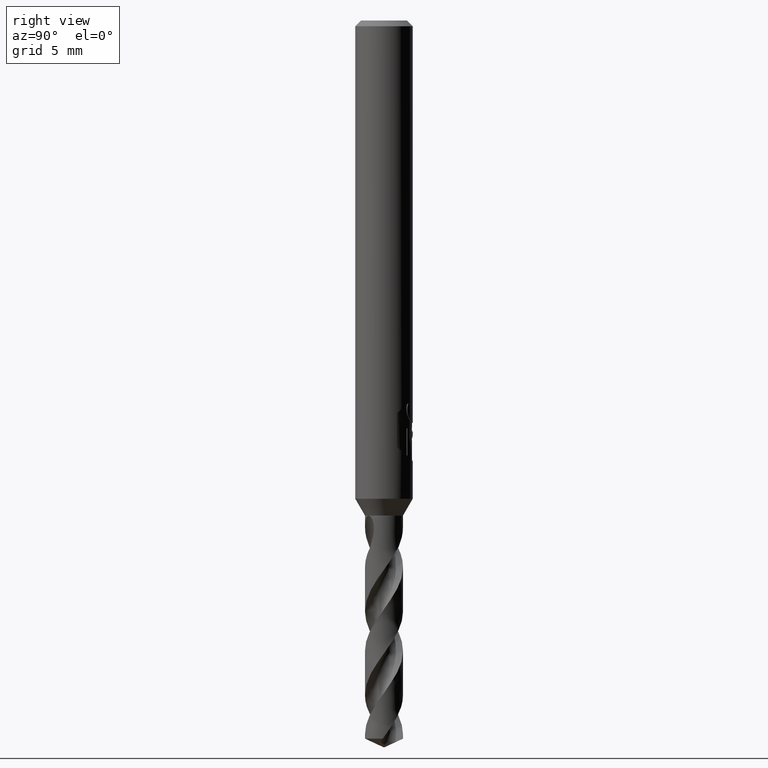
[diagram: clean part render]
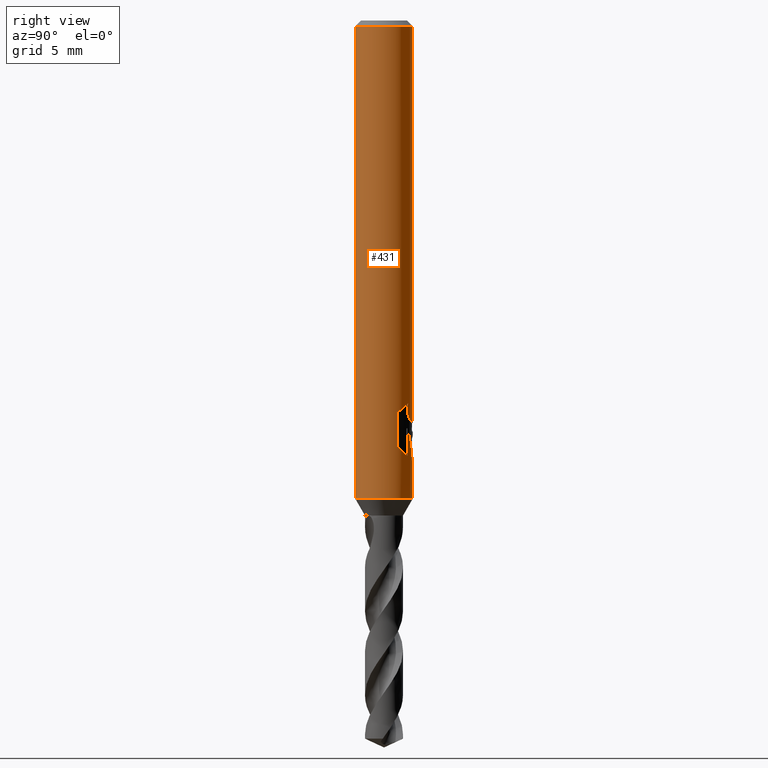
[diagram: same view with one face highlighted and labeled with its STEP entity id]
A machine part, right view. The second image highlights one B-rep face of the part: STEP entity #431.
In plain terms, the highlighted cylindrical surface (edge-blend (fillet) strip) has radius 1.5 mm, axis along (-0, -0, 1).
Its self-contained STEP definition (entity closure, byte-faithful):
#335=EDGE_CURVE('',#723,#379,#869,.T.);
#345=EDGE_CURVE('',#475,#633,#880,.T.);
#351=EDGE_CURVE('',#555,#769,#886,.T.);
#379=VERTEX_POINT('',#916);
#383=EDGE_CURVE('',#769,#429,#921,.T.);
#397=VERTEX_POINT('',#937);
#399=EDGE_CURVE('',#449,#723,#939,.T.);
#409=EDGE_CURVE('',#633,#567,#951,.T.);
#429=VERTEX_POINT('',#972);
#431=ADVANCED_FACE('',(#974),#975,.T.);
#449=VERTEX_POINT('',#996);
#475=VERTEX_POINT('',#1025);
#549=EDGE_CURVE('',#429,#397,#1106,.T.);
#555=VERTEX_POINT('',#1112);
#559=EDGE_CURVE('',#449,#475,#1116,.T.);
#567=VERTEX_POINT('',#1124);
#573=EDGE_CURVE('',#625,#739,#1131,.T.);
#601=EDGE_CURVE('',#625,#397,#1160,.T.);
#621=EDGE_CURVE('',#567,#555,#1185,.T.);
#625=VERTEX_POINT('',#1190);
#633=VERTEX_POINT('',#1199);
#647=EDGE_CURVE('',#379,#739,#1213,.T.);
#723=VERTEX_POINT('',#1295);
#739=VERTEX_POINT('',#1312);
#769=VERTEX_POINT('',#1344);
#869=CIRCLE('',#1611,1.5);
#880=ELLIPSE('',#1637,4.57199186005466,1.5);
#886=LINE('',#1645,#1646);
#916=CARTESIAN_POINT('',(1.83690953073357E-016,-1.5,-25.0));
#921=B_SPLINE_CURVE_WITH_KNOTS('',3,(#1700,#1701,#1702,#1703,#1704,#1705,#1706,#1707,#1708,#1709),.UNSPECIFIED.,.F.,.F.,(4,2,2,2,4),(5.80143132409454,6.14289950153579,6.48436767897705,6.79204857051347,7.0997294620499),.UNSPECIFIED.);
#937=CARTESIAN_POINT('',(1.07028167063725E-015,1.5,-21.0232688117743));
#939=LINE('',#2308,#2309);
#951=LINE('',#2328,#2329);
#972=CARTESIAN_POINT('',(0.799431726384364,1.26921586613551,-20.000000276873));
#974=FACE_OUTER_BOUND('',#2388,.T.);
#975=CYLINDRICAL_SURFACE('',#2389,1.5);
#996=CARTESIAN_POINT('',(-1.44945831354929E-017,1.5,-23.0310253601033));
#1025=CARTESIAN_POINT('',(0.29010312703583,1.47167937258223,-22.9998328990228));
#1106=B_SPLINE_CURVE_WITH_KNOTS('',3,(#3886,#3887,#3888,#3889,#3890,#3891,#3892,#3893,#3894,#3895,#3896,#3897,#3898,#3899,#3900,#3901,#3902,#3903,#3904,#3905,#3906,#3907,#3908,#3909,#3910,#3911,#3912),.UNSPECIFIED.,.F.,.F.,(4,2,3,2,2,2,2,2,2,2,2,2,4),(-0.555570148161677,-0.277785074080839,0.0,0.277785074080839,0.555570148161677,0.838954672448038,1.1223391967344,1.3938603912747,1.66538158581499,1.94034344792182,2.21530531002864,2.49026717213547,2.76522903424229),.UNSPECIFIED.);
#1112=CARTESIAN_POINT('',(1.33721006514658,0.679609624468842,-22.2901657003257));
#1116=B_SPLINE_CURVE_WITH_KNOTS('',3,(#3950,#3951,#3952,#3953,#3954,#3955,#3956,#3957,#3958,#3959,#3960,#3961,#3962,#3963,#3964,#3965),.UNSPECIFIED.,.F.,.F.,(4,2,2,2,2,2,2,4),(0.656882363151586,0.985323544727379,1.31376472630317,1.61579827194463,1.91783181758608,2.21986536322754,2.52189890886899,2.82957976825427),.UNSPECIFIED.);
#1124=CARTESIAN_POINT('',(0.873560781758956,1.21938163040645,-22.7587351791531));
#1131=CIRCLE('',#3989,1.5);
#1160=LINE('',#4111,#4112);
#1185=B_SPLINE_CURVE_WITH_KNOTS('',3,(#4255,#4256,#4257,#4258,#4259,#4260,#4261,#4262),.UNSPECIFIED.,.F.,.F.,(4,2,2,4),(3.44494145273238,3.75262234189648,4.09409052256848,4.43555870324049),.UNSPECIFIED.);
#1190=CARTESIAN_POINT('',(0.0,1.5,-0.300000000000001));
#1199=CARTESIAN_POINT('',(0.873560781758957,1.21938163040644,-21.3198931596091));
#1213=LINE('',#4549,#4550);
#1295=CARTESIAN_POINT('',(0.0,1.5,-25.0));
#1312=CARTESIAN_POINT('',(1.83690953073357E-016,-1.5,-0.300000000000001));
#1344=CARTESIAN_POINT('',(1.33721006514658,0.679609624468844,-20.5150484364821));
#1611=AXIS2_PLACEMENT_3D('',#5349,#5350,#5351);
#1637=AXIS2_PLACEMENT_3D('',#5362,#5363,#5364);
#1645=CARTESIAN_POINT('',(1.33721006514658,0.679609624468842,-21.4026070684039));
#1646=VECTOR('',#5368,1.0);
#1700=CARTESIAN_POINT('',(1.38233607683132,0.582363263513924,-20.588679412779));
#1701=CARTESIAN_POINT('',(1.34525639795916,0.670378049131382,-20.5244129230316));
#1702=CARTESIAN_POINT('',(1.29959340329505,0.755206644680287,-20.455769574626));
#1703=CARTESIAN_POINT('',(1.19231359589767,0.915242249292316,-20.3209795489815));
#1704=CARTESIAN_POINT('',(1.13065973177348,0.990366311544942,-20.2547639028079));
#1705=CARTESIAN_POINT('',(1.0018814103964,1.11969494701727,-20.1385233736042));
#1706=CARTESIAN_POINT('',(0.931827529215927,1.17928357954499,-20.0838174178235));
#1707=CARTESIAN_POINT('',(0.77571718400412,1.28735199393445,-19.9832315170083));
#1708=CARTESIAN_POINT('',(0.689646271470066,1.33582605359774,-19.9373678495874));
#1709=CARTESIAN_POINT('',(0.597730583977961,1.37576093452946,-19.8990923208842));
#2308=CARTESIAN_POINT('',(-1.83690953073357E-016,1.5,-12.65));
#2309=VECTOR('',#5423,1.0);
#2328=CARTESIAN_POINT('',(0.873560781758957,1.21938163040644,-22.0393141693811));
#2329=VECTOR('',#5440,1.0);
#2388=EDGE_LOOP('',(#5458,#5459,#5460,#5461,#5462,#5463,#5464,#5465,#5466,#5467,#5468,#5469));
#2389=AXIS2_PLACEMENT_3D('',#5470,#5471,#5472);
#3886=CARTESIAN_POINT('',(0.668140181180239,1.34297754943723,-19.816635075886));
#3887=CARTESIAN_POINT('',(0.72954561541178,1.31242794124006,-19.8788438588981));
#3888=CARTESIAN_POINT('',(0.783560352001634,1.27981669553828,-19.9575082882911));
#3889=CARTESIAN_POINT('',(0.856513351014311,1.23218614058296,-20.132478185051));
#3890=CARTESIAN_POINT('',(0.875400981188567,1.21806121444453,-20.2290469878932));
#3891=CARTESIAN_POINT('',(0.875400981188567,1.21806121444453,-20.3216420125868));
#3892=CARTESIAN_POINT('',(0.875400981188567,1.21806121444453,-20.4142370372804));
#3893=CARTESIAN_POINT('',(0.856513351014311,1.23218614058296,-20.5108058401225));
#3894=CARTESIAN_POINT('',(0.783560352001634,1.27981669553828,-20.6857757368825));
#3895=CARTESIAN_POINT('',(0.72954561541178,1.31242794124006,-20.7644401662755));
#3896=CARTESIAN_POINT('',(0.60549696744429,1.37414296109493,-20.8901117053001));
#3897=CARTESIAN_POINT('',(0.52594358793364,1.40783000818906,-20.945820443328));
#3898=CARTESIAN_POINT('',(0.348504567526036,1.46189827571051,-21.0210790623878));
#3899=CARTESIAN_POINT('',(0.250472190188546,1.48195366272155,-21.0405166027747));
#3900=CARTESIAN_POINT('',(0.0665134459332673,1.50125530483568,-21.0405166027747));
#3901=CARTESIAN_POINT('',(-0.0296567030390787,1.50231596180862,-21.0225191030741));
#3902=CARTESIAN_POINT('',(-0.206115087377689,1.48840496513252,-20.9496420023373));
#3903=CARTESIAN_POINT('',(-0.286451100530325,1.47383453037813,-20.8948020659474));
#3904=CARTESIAN_POINT('',(-0.413930554322423,1.44326440842702,-20.7683224497832));
#3905=CARTESIAN_POINT('',(-0.469556401354002,1.42515667708804,-20.6877724765815));
#3906=CARTESIAN_POINT('',(-0.543783863835251,1.3985185002205,-20.5103125850334));
#3907=CARTESIAN_POINT('',(-0.562348199187247,1.39059861314143,-20.4132959666224));
#3908=CARTESIAN_POINT('',(-0.562348199187247,1.39059861314143,-20.2299880585512));
#3909=CARTESIAN_POINT('',(-0.543783863835251,1.3985185002205,-20.1329714401401));
#3910=CARTESIAN_POINT('',(-0.469556401354002,1.42515667708804,-19.9555115485921));
#3911=CARTESIAN_POINT('',(-0.413930554322424,1.44326440842702,-19.8749615753903));
#3912=CARTESIAN_POINT('',(-0.349789520911262,1.45864570443294,-19.8113236082914));
#3950=CARTESIAN_POINT('',(-1.37998432118956,0.587914341780333,-22.3112692902851));
#3951=CARTESIAN_POINT('',(-1.3420187927796,0.677031105684867,-22.367742000234));
#3952=CARTESIAN_POINT('',(-1.29552710671502,0.762160552391982,-22.4289638354046));
#3953=CARTESIAN_POINT('',(-1.18739688452769,0.921611538394464,-22.5496702342709));
#3954=CARTESIAN_POINT('',(-1.12571460502269,0.995864518486346,-22.6092061584419));
#3955=CARTESIAN_POINT('',(-0.99683873257529,1.12423580420845,-22.7144597063823));
#3956=CARTESIAN_POINT('',(-0.926200605330785,1.18371601339253,-22.7644681671771));
#3957=CARTESIAN_POINT('',(-0.769406154596547,1.29114109676327,-22.8557531235434));
#3958=CARTESIAN_POINT('',(-0.683234987830561,1.33908204140926,-22.8970087462345));
#3959=CARTESIAN_POINT('',(-0.499897730684779,1.4177634331103,-22.9645767271564));
#3960=CARTESIAN_POINT('',(-0.402498520356948,1.44857835781097,-22.9909473368275));
#3961=CARTESIAN_POINT('',(-0.20288430631457,1.48970543263052,-23.0250573425345));
#3962=CARTESIAN_POINT('',(-0.100662581590227,1.5,-23.0327786015796));
#3963=CARTESIAN_POINT('',(0.102544734048809,1.5,-23.0292393371535));
#3964=CARTESIAN_POINT('',(0.206197625002642,1.48932559621363,-23.0175826358192));
#3965=CARTESIAN_POINT('',(0.307013263411802,1.46824482157753,-22.9963679704669));
#3989=AXIS2_PLACEMENT_3D('',#5643,#5644,#5645);
#4111=CARTESIAN_POINT('',(-1.83690953073357E-016,1.5,-12.65));
#4112=VECTOR('',#5670,1.0);
#4255=CARTESIAN_POINT('',(0.85377235345141,1.23331778892629,-22.7716896685764));
#4256=CARTESIAN_POINT('',(0.931827525962819,1.17928358209268,-22.7213967195539));
#4257=CARTESIAN_POINT('',(1.00188140708589,1.11969494995205,-22.6666907649153));
#4258=CARTESIAN_POINT('',(1.13065972950939,0.990366314251407,-22.5504502365922));
#4259=CARTESIAN_POINT('',(1.19231359439054,0.915242251333689,-22.4842345901414));
#4260=CARTESIAN_POINT('',(1.29959340280439,0.755206645619147,-22.3494445634359));
#4261=CARTESIAN_POINT('',(1.34525639772529,0.670378049633869,-22.2808012142433));
#4262=CARTESIAN_POINT('',(1.38233607670672,0.582363263809685,-22.2165347234377));
#4549=CARTESIAN_POINT('',(1.83690953073357E-016,-1.5,-12.65));
#4550=VECTOR('',#5762,1.0);
#5349=CARTESIAN_POINT('',(0.0,0.0,-25.0));
#5350=DIRECTION('',(0.0,0.0,-1.0));
#5351=DIRECTION('',(0.0,1.0,0.0));
#5362=CARTESIAN_POINT('',(0.0,0.0,-23.8351219173269));
#5363=DIRECTION('',(0.944648353914092,0.0,-0.328084573619969));
#5364=DIRECTION('',(0.328084573619969,-0.0,0.944648353914092));
#5368=DIRECTION('',(-0.0,-0.0,1.0));
#5423=DIRECTION('',(0.0,0.0,-1.0));
#5440=DIRECTION('',(0.0,0.0,-1.0));
#5458=ORIENTED_EDGE('',*,*,#601,.F.);
#5459=ORIENTED_EDGE('',*,*,#573,.T.);
#5460=ORIENTED_EDGE('',*,*,#647,.F.);
#5461=ORIENTED_EDGE('',*,*,#335,.F.);
#5462=ORIENTED_EDGE('',*,*,#399,.F.);
#5463=ORIENTED_EDGE('',*,*,#559,.T.);
#5464=ORIENTED_EDGE('',*,*,#345,.T.);
#5465=ORIENTED_EDGE('',*,*,#409,.T.);
#5466=ORIENTED_EDGE('',*,*,#621,.T.);
#5467=ORIENTED_EDGE('',*,*,#351,.T.);
#5468=ORIENTED_EDGE('',*,*,#383,.T.);
#5469=ORIENTED_EDGE('',*,*,#549,.T.);
#5470=CARTESIAN_POINT('',(0.0,0.0,-12.65));
#5471=DIRECTION('',(-0.0,-0.0,1.0));
#5472=DIRECTION('',(0.0,1.0,0.0));
#5643=CARTESIAN_POINT('',(0.0,0.0,-0.300000000000001));
#5644=DIRECTION('',(0.0,0.0,-1.0));
#5645=DIRECTION('',(0.0,1.0,0.0));
#5670=DIRECTION('',(0.0,0.0,-1.0));
#5762=DIRECTION('',(-0.0,-0.0,1.0));